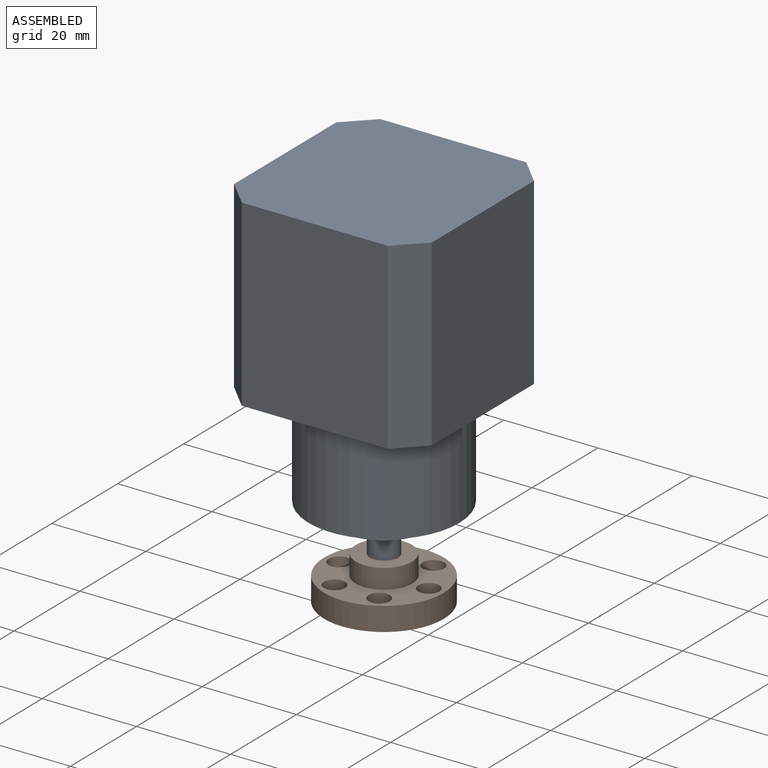
[diagram: assembled view]
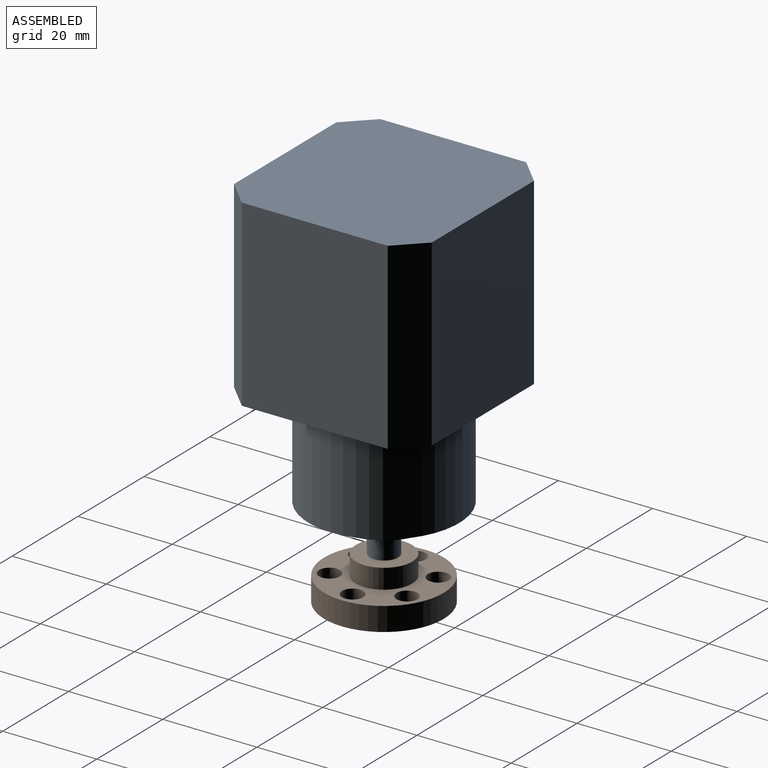
[diagram: assembled view, second angle]
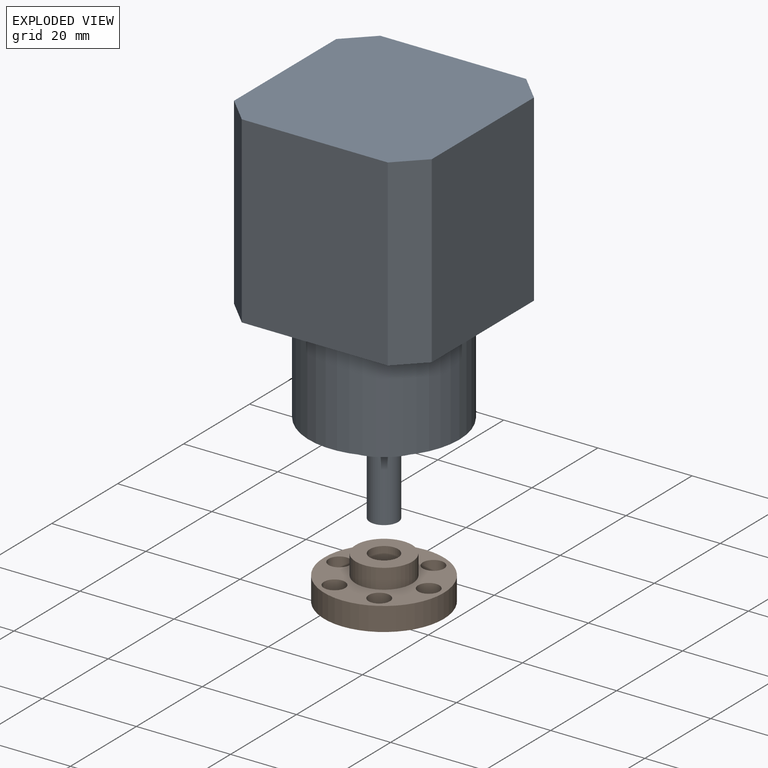
[diagram: exploded view]
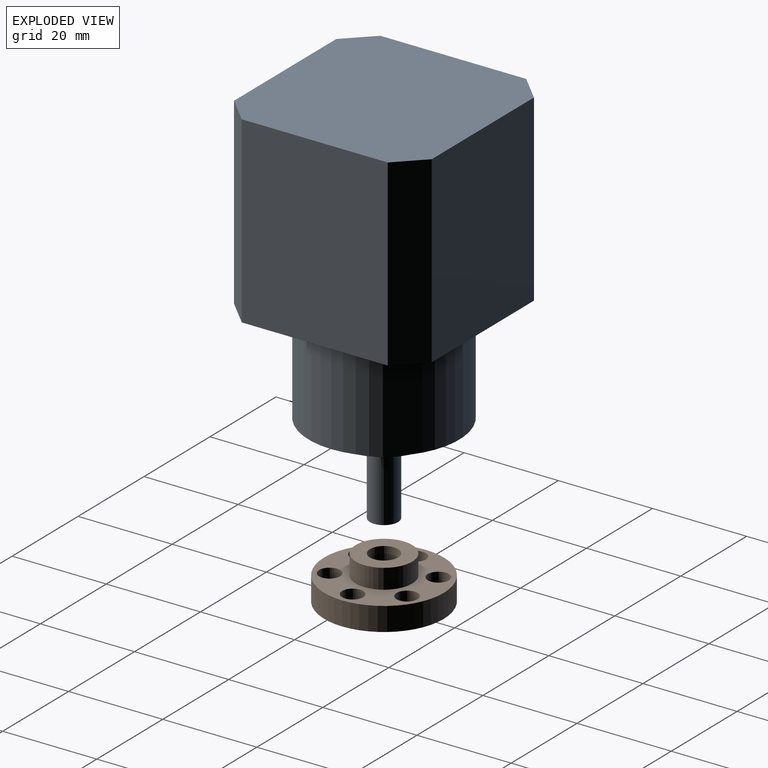
[diagram: exploded view, second angle]
ASSEMBLY  parts=2 mates=2
PART A: 32 faces, bbox 42x42x80.4 mm
  f0: plane 39x31mm, normal (0,1,0), area 1209mm2, adj f4,f5,f14,f15
  f1: plane 39x31mm, normal (-1,0,0), area 1209mm2, adj f4,f5,f12,f15
  f2: plane 39x31mm, normal (0,-1,0), area 1209mm2, adj f4,f5,f12,f13
  f3: plane 39x31mm, normal (1,0,0), area 1209mm2, adj f4,f5,f13,f14
  f4: plane 42x42mm, normal (0,0,1), area 865mm2, adj f0,f1,f2,f3,f6,f12,f13,f14
  f5: plane 42x42mm, normal (0,0,-1), area 1703.5mm2, adj f0,f1,f2,f3,f12,f13,f14,f15
  f6: cylinder r=16mm len=32mm, axis (0,0,-1), area 2221.7mm2, adj f4,f7
  f7: plane 32x32mm, normal (0,0,1), area 453.8mm2, adj f6,f8,f25,f27,f29,f31
  f8: cylinder r=10mm len=20mm, axis (0,0,-1), area 188.5mm2, adj f7,f9
  f9: plane 20x20mm, normal (0,0,1), area 285.9mm2, adj f8,f10
  f10: cylinder r=3mm len=16.3mm, axis (0,0,-1), area 307.2mm2, adj f9,f11
  f11: plane 6x6mm, normal (0,0,1), area 28.3mm2, adj f10
  f12: plane 39x5.5mm, normal (-0.71,-0.71,0), area 303.3mm2, adj f1,f2,f4,f5
  f13: plane 39x5.5mm, normal (0.71,-0.71,0), area 303.3mm2, adj f2,f3,f4,f5
  f14: plane 39x5.5mm, normal (0.71,0.71,0), area 303.3mm2, adj f0,f3,f4,f5
  f15: plane 39x5.5mm, normal (-0.71,0.71,0), area 303.3mm2, adj f0,f1,f4,f5
  f16: cone r=0mm half-angle=59deg, axis (0,0,1), area 10mm2, adj f17
  f17: cylinder r=1.65mm len=7mm, axis (0,0,1), area 72.6mm2, adj f4,f16
  f18: cone r=0mm half-angle=59deg, axis (0,0,1), area 10mm2, adj f19
  f19: cylinder r=1.65mm len=7mm, axis (0,0,1), area 72.6mm2, adj f4,f18
  f20: cone r=0mm half-angle=59deg, axis (0,0,1), area 10mm2, adj f21
  f21: cylinder r=1.65mm len=7mm, axis (0,0,1), area 72.6mm2, adj f4,f20
  f22: cone r=0mm half-angle=59deg, axis (0,0,1), area 10mm2, adj f23
  f23: cylinder r=1.65mm len=7mm, axis (0,0,1), area 72.6mm2, adj f4,f22
  f24: cone r=0mm half-angle=59deg, axis (0,0,1), area 10.6mm2, adj f25
  f25: cylinder r=1.7mm len=7mm, axis (0,0,1), area 74.8mm2, adj f7,f24
  f26: cone r=0mm half-angle=59deg, axis (0,0,1), area 10.6mm2, adj f27
  f27: cylinder r=1.7mm len=7mm, axis (0,0,1), area 74.8mm2, adj f7,f26
  f28: cone r=0mm half-angle=59deg, axis (0,0,1), area 10.6mm2, adj f29
  f29: cylinder r=1.7mm len=7mm, axis (0,0,1), area 74.8mm2, adj f7,f28
  f30: cone r=0mm half-angle=59deg, axis (0,0,1), area 10.6mm2, adj f31
  f31: cylinder r=1.7mm len=7mm, axis (0,0,1), area 74.8mm2, adj f7,f30
PART B: 12 faces, bbox 25.4x25.4x9.2 mm
  f0: plane 25.4x25.4mm, normal (0,0,-1), area 383mm2, adj f1,f5,f6,f7,f8,f9,f10,f11
  f1: cylinder r=3mm len=9.2mm, axis (0,0,1), area 173.4mm2, adj f0,f2
  f2: plane 12x12mm, normal (0,0,1), area 84.8mm2, adj f1,f3
  f3: cylinder r=6mm len=12mm, axis (0,0,1), area 158.3mm2, adj f2,f4
  f4: plane 25.4x25.4mm, normal (0,0,1), area 298.2mm2, adj f3,f5,f6,f7,f8,f9,f10,f11
  f5: cylinder r=12.7mm len=25.4mm, axis (0,0,1), area 399mm2, adj f0,f4
  f6: cylinder r=2.25mm len=5mm, axis (0,0,1), area 70.7mm2, adj f0,f4
  f7: cylinder r=2.25mm len=5mm, axis (0,0,1), area 70.7mm2, adj f0,f4
  f8: cylinder r=2.25mm len=5mm, axis (0,0,1), area 70.7mm2, adj f0,f4
  f9: cylinder r=2.25mm len=5mm, axis (0,0,1), area 70.7mm2, adj f0,f4
  f10: cylinder r=2.25mm len=5mm, axis (0,0,1), area 70.7mm2, adj f0,f4
  f11: cylinder r=2.25mm len=5mm, axis (0,0,1), area 70.7mm2, adj f0,f4
PLACE A rot(axis=(1,0,0),180deg) t=(-36.45,41.49,162.39)mm
PLACE B t=(-36.45,41.49,81.99)mm
MATE slider A.f10 <-> B.f1  axis (0,0,1) through (-36.45,41.49,90.14)mm
MATE fastened B.f1 <-> A.f10  axis (0,0,-1) through (-36.45,41.49,81.99)mm
